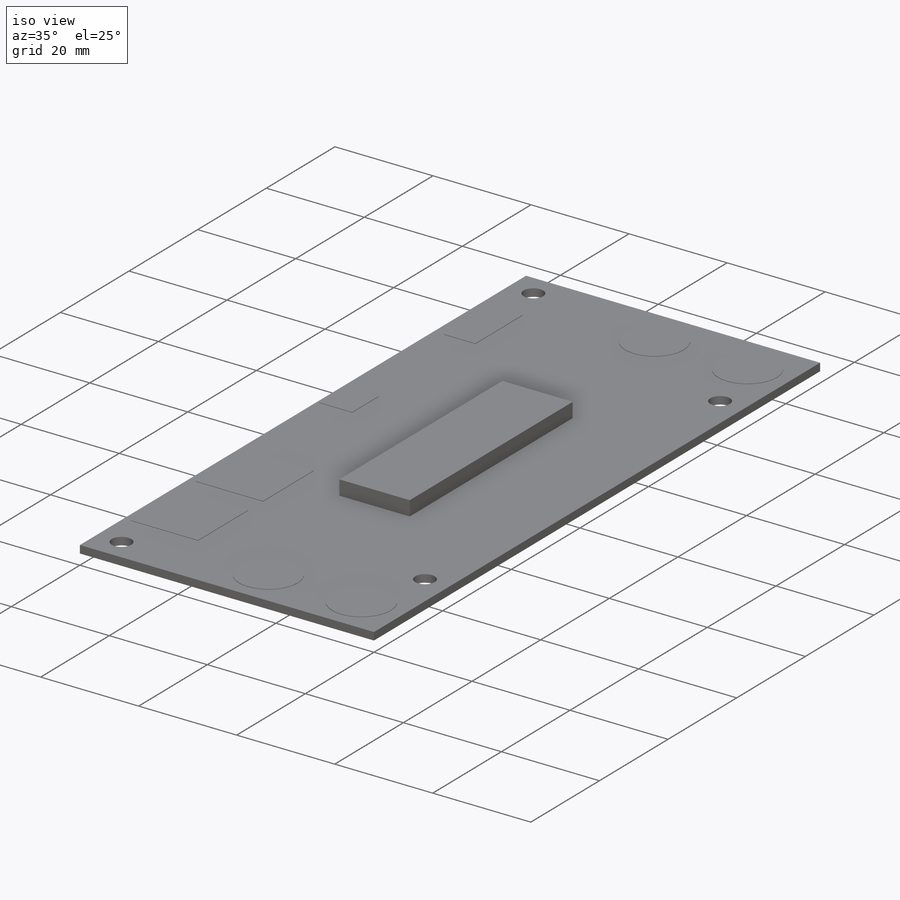
[diagram: iso view]
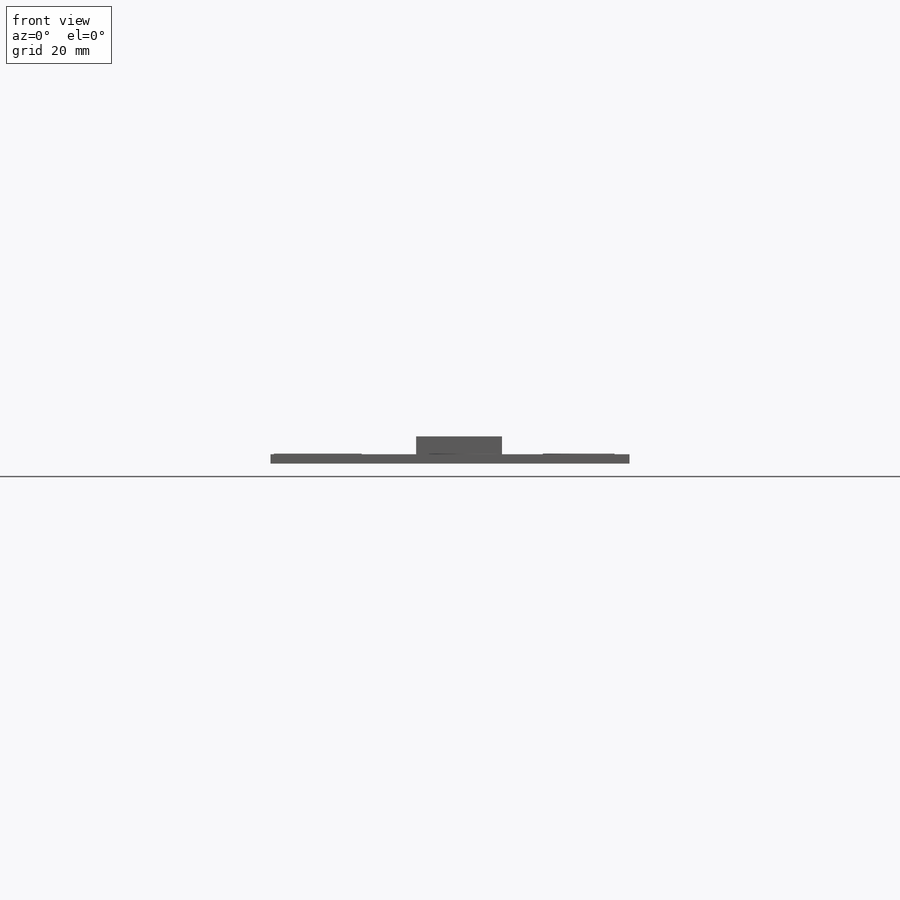
[diagram: front view]
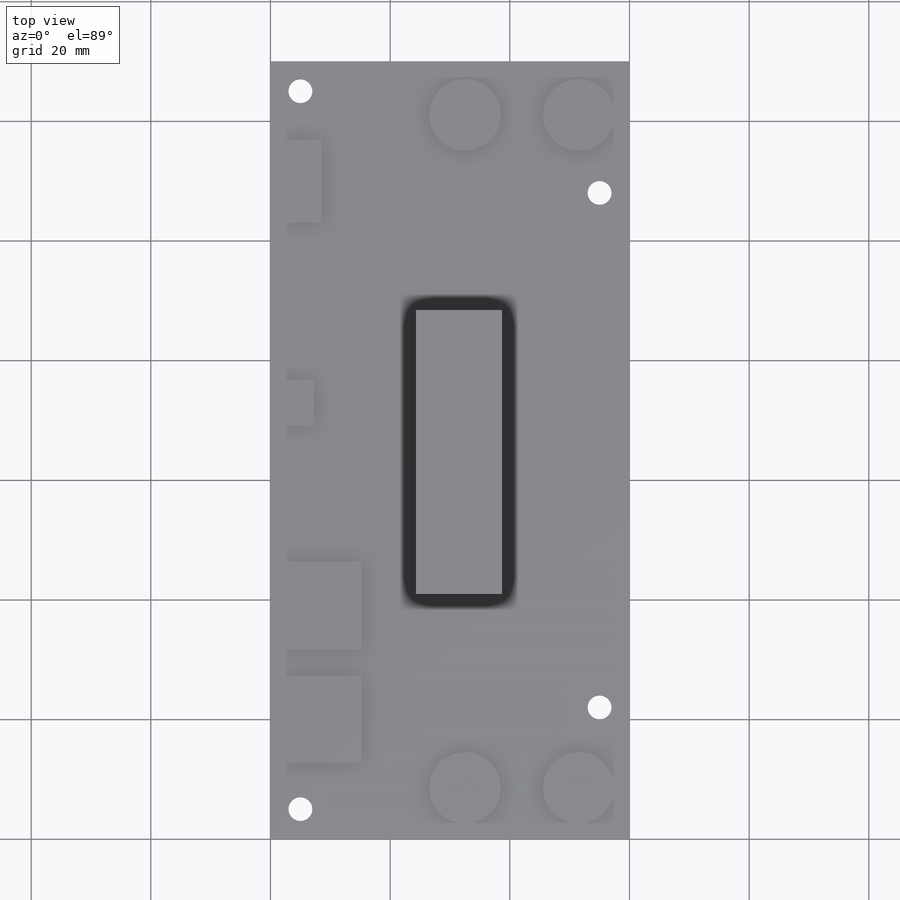
[diagram: top view]
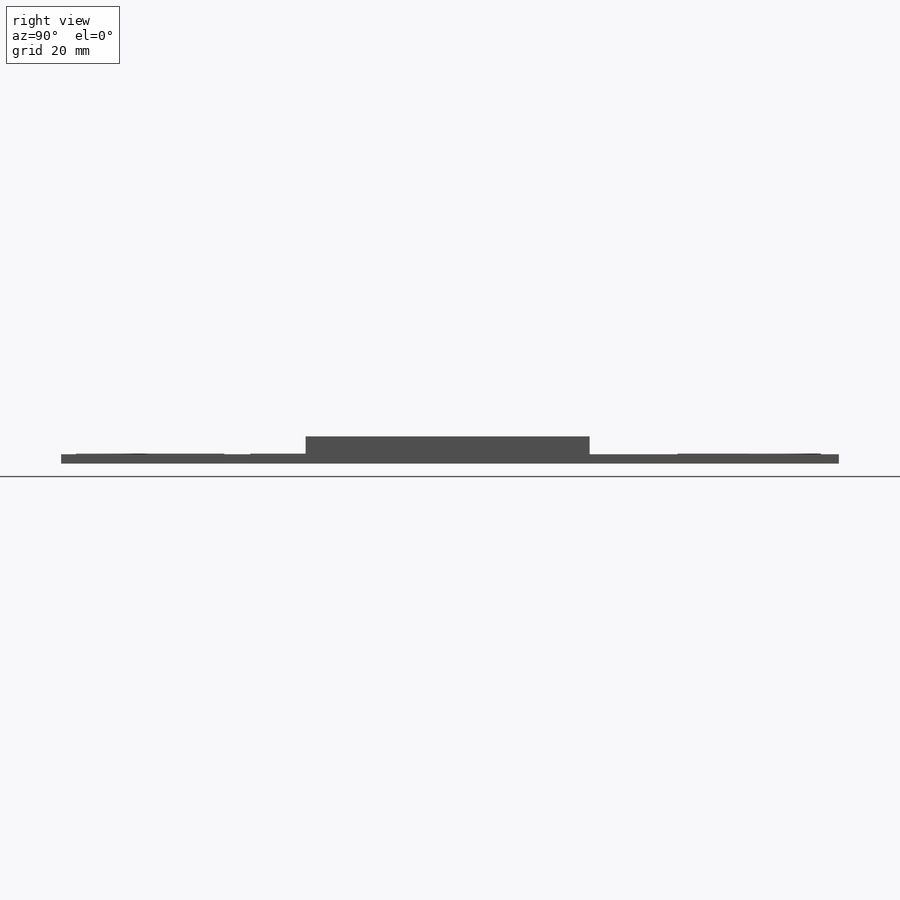
[diagram: right view]
SOLIDWORKS PART (.sldprt)
format: sldprt  version: not decoded by parser v0  size: 222,208 bytes
history: native  units: mm
features: sketch x7, extrude x7, material x1 (+16 scaffold rows collapsed)
feature tree (31):
  scaffold x16  (default folders/planes/origin — collapsed)
  material  "Material <not specified>"
  sketch  "Sketch1"
  extrude  "Boss-Extrude1"  Depth=1.57mm
  sketch  "Sketch2"
  extrude  "Boss-Extrude2"  Depth=3mm
  sketch  "Sketch3"  dims[D1=~6.667853mm]
  extrude  "Boss-Extrude6"  Depth=6.418034mm
  sketch  "Sketch4"  dims[D1=~5.833746mm]
  extrude  "Boss-Extrude7"  Depth=0.1mm
  sketch  "Sketch5"
  extrude  "Boss-Extrude8"  Depth=0.1mm
  sketch  "Sketch6"
  extrude  "Boss-Extrude9"  Depth=0.1mm
  sketch  "Sketch7"
  extrude  "Boss-Extrude10"  Depth=0.1mm
decode coverage: 9 of 14 modeling features carry decoded parameters
note: ~ marks probable driven/reference dimensions
note: suppression state not decoded; provenance and decode notes live in map.json
